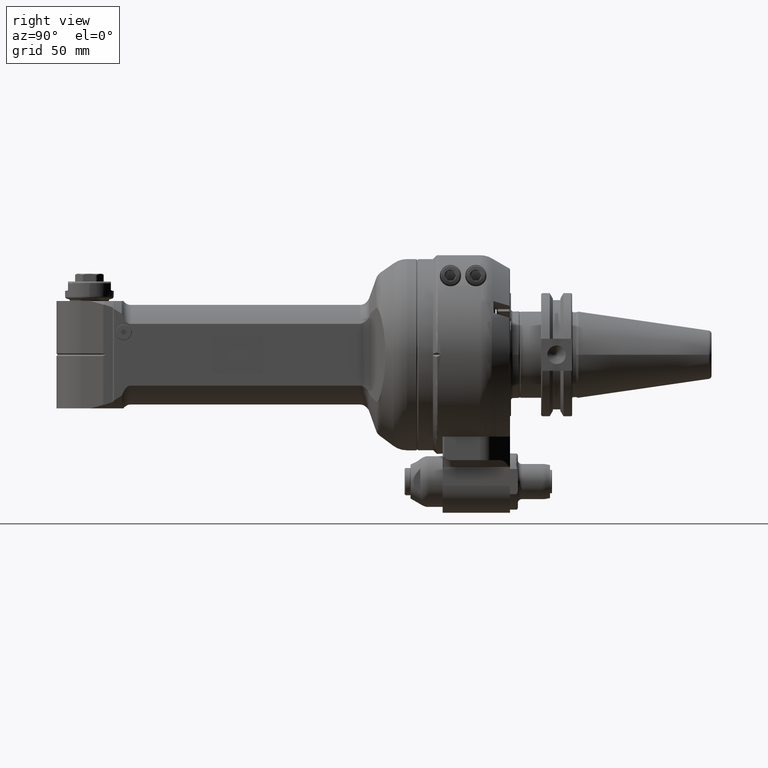
[diagram: clean part render]
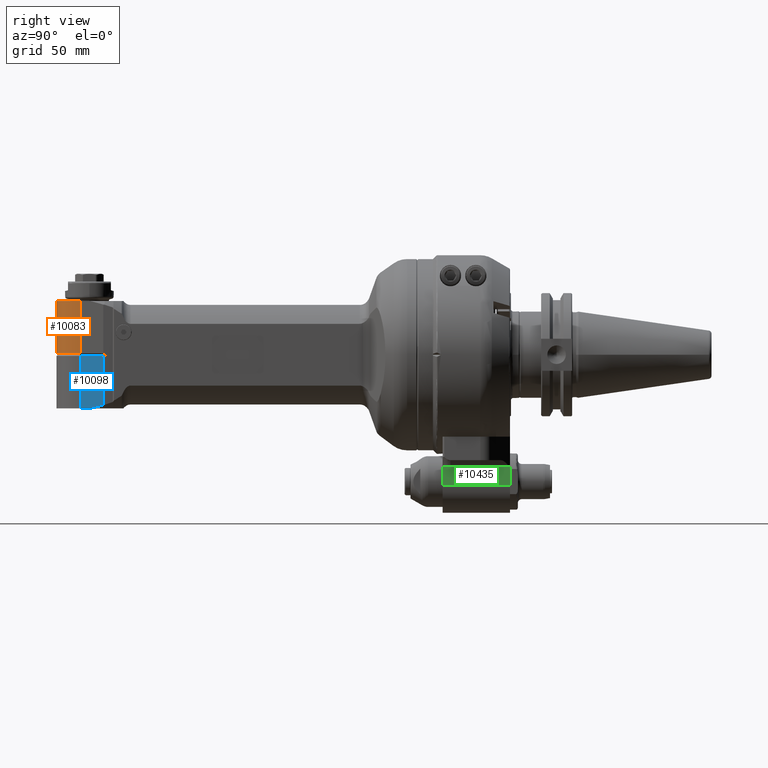
[diagram: same view with three faces highlighted in distinct colors, each labeled with its STEP entity id]
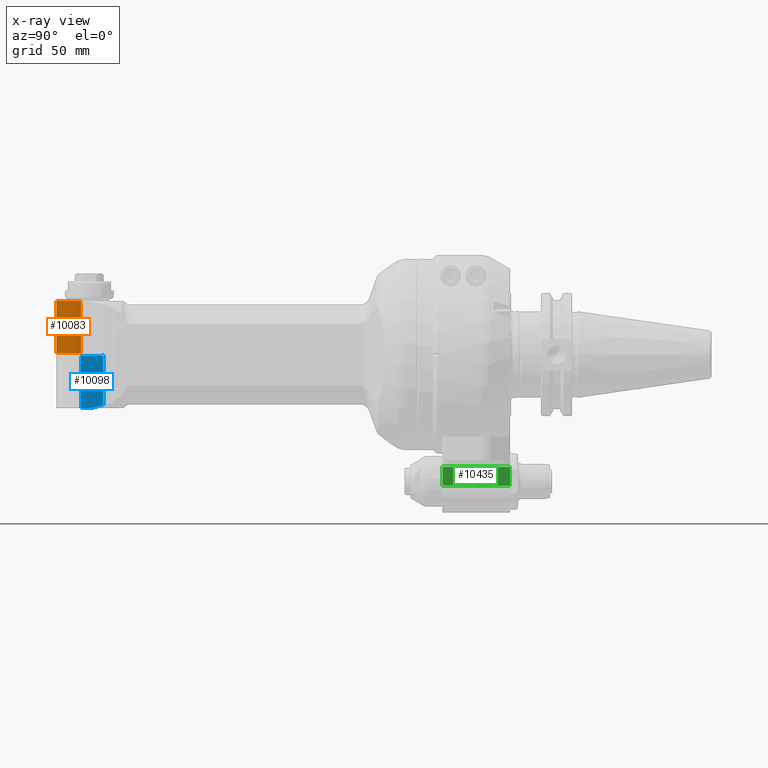
[diagram: x-ray of the same camera — body ghosted, the three highlighted faces saturated]
A machine part, right view with three faces highlighted in distinct colors.
The next image is the same camera in x-ray (body ghosted, the three faces saturated) — at least one of them is partly hidden behind the body in this view.
Their STEP definitions:

[orange] entity #10083 — the highlighted cylindrical surface (edge-blend (fillet) strip) has radius 17 mm, axis along (-0, 0, -1).
#876=FACE_OUTER_BOUND('',#1506,.T.);
#1506=EDGE_LOOP('',(#6916,#6917,#6918,#6919));
#2219=LINE('',#15835,#2895);
#2224=LINE('',#15854,#2900);
#2895=VECTOR('',#12286,26.83431457505);
#2900=VECTOR('',#12305,26.83431457505);
#3582=CIRCLE('',#10875,17.);
#3586=CIRCLE('',#10885,17.);
#4243=VERTEX_POINT('',#15807);
#4244=VERTEX_POINT('',#15809);
#4249=VERTEX_POINT('',#15833);
#4252=VERTEX_POINT('',#15848);
#5273=EDGE_CURVE('',#4243,#4244,#3582,.T.);
#5283=EDGE_CURVE('',#4243,#4249,#2219,.T.);
#5289=EDGE_CURVE('',#4252,#4249,#3586,.T.);
#5292=EDGE_CURVE('',#4252,#4244,#2224,.T.);
#6916=ORIENTED_EDGE('',*,*,#5289,.F.);
#6917=ORIENTED_EDGE('',*,*,#5292,.T.);
#6918=ORIENTED_EDGE('',*,*,#5273,.F.);
#6919=ORIENTED_EDGE('',*,*,#5283,.T.);
#9698=CYLINDRICAL_SURFACE('',#10887,17.);
#10083=ADVANCED_FACE('',(#876),#9698,.T.);
#10875=AXIS2_PLACEMENT_3D('',#15810,#12272,#12273);
#10885=AXIS2_PLACEMENT_3D('',#15849,#12298,#12299);
#10887=AXIS2_PLACEMENT_3D('',#15853,#12303,#12304);
#12272=DIRECTION('center_axis',(0.,-1.,0.));
#12273=DIRECTION('ref_axis',(0.258819045102493,0.,-0.965925826289076));
#12286=DIRECTION('',(0.,1.,0.));
#12298=DIRECTION('center_axis',(0.,1.,0.));
#12299=DIRECTION('ref_axis',(0.258819045102493,0.,0.965925826289076));
#12303=DIRECTION('center_axis',(0.,1.,0.));
#12304=DIRECTION('ref_axis',(1.,0.,1.22464679914735E-16));
#12305=DIRECTION('',(0.,-1.,0.));
#15807=CARTESIAN_POINT('',(211.3999237667,-27.5,-16.42073904691));
#15809=CARTESIAN_POINT('',(211.3999237667,-27.5,16.42073904691));
#15810=CARTESIAN_POINT('Origin',(207.,-27.5,0.));
#15833=CARTESIAN_POINT('',(211.3999237667,-0.6656854249492,-16.42073904691));
#15835=CARTESIAN_POINT('',(211.3999237667,-27.5,-16.42073904691));
#15848=CARTESIAN_POINT('',(211.3999237667,-0.6656854249492,16.42073904691));
#15849=CARTESIAN_POINT('Origin',(207.,-0.6656854249492,0.));
#15853=CARTESIAN_POINT('Origin',(207.,-66.95199937934,0.));
#15854=CARTESIAN_POINT('',(211.3999237667,-0.6656854249492,16.42073904691));

[blue] entity #10098 — the highlighted planar face has unit normal (-0.9659, 0.2588, 0).
#40=ELLIPSE('',#10861,147.665159800745,36.9484048571257);
#375=(
BOUNDED_CURVE()
B_SPLINE_CURVE(2,(#15912,#15913,#15914),.UNSPECIFIED.,.F.,.F.)
B_SPLINE_CURVE_WITH_KNOTS((3,3),(-0.608380908828798,-0.457133233484977),
 .UNSPECIFIED.)
CURVE()
GEOMETRIC_REPRESENTATION_ITEM()
RATIONAL_B_SPLINE_CURVE((1.05761844635395,1.05761844635161,1.0540573165336))
REPRESENTATION_ITEM('')
);
#574=PLANE('',#10913);
#891=FACE_OUTER_BOUND('',#1521,.T.);
#1521=EDGE_LOOP('',(#6981,#6982,#6983,#6984,#6985,#6986));
#2211=LINE('',#15705,#2887);
#2215=LINE('',#15776,#2891);
#2232=LINE('',#15886,#2908);
#2236=LINE('',#15915,#2912);
#2887=VECTOR('',#12232,10.);
#2891=VECTOR('',#12248,10.);
#2908=VECTOR('',#12341,26.83431457505);
#2912=VECTOR('',#12369,10.);
#4219=VERTEX_POINT('',#15700);
#4220=VERTEX_POINT('',#15704);
#4226=VERTEX_POINT('',#15727);
#4235=VERTEX_POINT('',#15772);
#4260=VERTEX_POINT('',#15880);
#4264=VERTEX_POINT('',#15911);
#5242=EDGE_CURVE('',#4219,#4220,#2211,.T.);
#5251=EDGE_CURVE('',#4219,#4226,#40,.T.);
#5260=EDGE_CURVE('',#4226,#4235,#2215,.T.);
#5308=EDGE_CURVE('',#4220,#4260,#2232,.T.);
#5318=EDGE_CURVE('',#4264,#4235,#375,.T.);
#5319=EDGE_CURVE('',#4264,#4260,#2236,.T.);
#6981=ORIENTED_EDGE('',*,*,#5308,.F.);
#6982=ORIENTED_EDGE('',*,*,#5242,.F.);
#6983=ORIENTED_EDGE('',*,*,#5251,.T.);
#6984=ORIENTED_EDGE('',*,*,#5260,.T.);
#6985=ORIENTED_EDGE('',*,*,#5318,.F.);
#6986=ORIENTED_EDGE('',*,*,#5319,.T.);
#10098=ADVANCED_FACE('',(#891),#574,.F.);
#10861=AXIS2_PLACEMENT_3D('',#15732,#12240,#12241);
#10913=AXIS2_PLACEMENT_3D('',#15910,#12367,#12368);
#12232=DIRECTION('',(0.965925826289076,0.,-0.258819045102493));
#12240=DIRECTION('center_axis',(0.258811809118351,2.74494483472399E-5,0.965927764746109));
#12241=DIRECTION('ref_axis',(0.965894803164682,0.00825389146189277,-0.25880321191051));
#12248=DIRECTION('',(0.,-1.,0.));
#12341=DIRECTION('',(0.,-1.,0.));
#12367=DIRECTION('center_axis',(-0.258819045102493,0.,-0.965925826289076));
#12368=DIRECTION('ref_axis',(-0.965925826289076,0.,0.258819045102493));
#12369=DIRECTION('',(0.965925826289076,8.94952701449703E-15,-0.258819045102493));
#15700=CARTESIAN_POINT('',(206.559819615343,27.5000006021057,17.7176431988342));
#15704=CARTESIAN_POINT('',(211.3999237667,27.5,16.42073904691));
#15705=CARTESIAN_POINT('',(225.182559701213,27.5,12.7276928787072));
#15727=CARTESIAN_POINT('',(199.9079654401,25.68459718532,19.5));
#15732=CARTESIAN_POINT('Origin',(305.150412604332,1.58886621168437,-8.69809899475084));
#15772=CARTESIAN_POINT('',(199.90796543257,0.584601486542986,19.5000000009915));
#15776=CARTESIAN_POINT('',(199.907965440085,-13.375,19.5));
#15880=CARTESIAN_POINT('',(211.3999237667,0.6656854249493,16.42073904691));
#15886=CARTESIAN_POINT('',(211.3999237667,27.5,16.42073904691));
#15910=CARTESIAN_POINT('Origin',(198.0419400363,-27.,20.));
#15911=CARTESIAN_POINT('',(201.257702575477,0.665686363980565,19.1383389673964));
#15912=CARTESIAN_POINT('Ctrl Pts',(201.257702589793,0.665685424967874,19.1383390207414));
#15913=CARTESIAN_POINT('Ctrl Pts',(200.585106375664,0.665685424914957,19.3185606331496));
#15914=CARTESIAN_POINT('Ctrl Pts',(199.907965432519,0.584601489258191,19.5000000020273));
#15915=CARTESIAN_POINT('',(204.720931901515,0.665685424956044,18.2103695234618));

[green] entity #10435 — the highlighted planar face has unit normal (-1, 0, 0).
#391=(
BOUNDED_CURVE()
B_SPLINE_CURVE(2,(#19944,#19945,#19946),.UNSPECIFIED.,.F.,.F.)
B_SPLINE_CURVE_WITH_KNOTS((3,3),(-2.58287776726093,-2.57434975898472),
 .UNSPECIFIED.)
CURVE()
GEOMETRIC_REPRESENTATION_ITEM()
RATIONAL_B_SPLINE_CURVE((1.44254286468392,1.44297118444748,1.44339185140923))
REPRESENTATION_ITEM('')
);
#504=B_SPLINE_CURVE_WITH_KNOTS('',3,(#19947,#19948,#19949,#19950,#19951,
#19952),.UNSPECIFIED.,.F.,.F.,(4,1,1,4),(0.,0.3333333333333,0.6666666666667,
1.),.UNSPECIFIED.);
#723=PLANE('',#11612);
#1228=FACE_OUTER_BOUND('',#1916,.T.);
#1916=EDGE_LOOP('',(#8622,#8623,#8624,#8625,#8626,#8627,#8628));
#2387=LINE('',#16835,#3063);
#2432=LINE('',#17219,#3108);
#2435=LINE('',#17225,#3111);
#2586=LINE('',#19787,#3262);
#2602=LINE('',#19942,#3278);
#3063=VECTOR('',#13180,9.5);
#3108=VECTOR('',#13311,0.7629679276389);
#3111=VECTOR('',#13314,8.70839142844);
#3262=VECTOR('',#14081,34.5);
#3278=VECTOR('',#14133,34.5);
#4477=VERTEX_POINT('',#16832);
#4478=VERTEX_POINT('',#16834);
#4542=VERTEX_POINT('',#17216);
#4543=VERTEX_POINT('',#17218);
#4545=VERTEX_POINT('',#17222);
#4546=VERTEX_POINT('',#17224);
#4791=VERTEX_POINT('',#19943);
#5655=EDGE_CURVE('',#4478,#4477,#2387,.T.);
#5736=EDGE_CURVE('',#4543,#4542,#2432,.T.);
#5739=EDGE_CURVE('',#4546,#4545,#2435,.T.);
#6108=EDGE_CURVE('',#4542,#4478,#2586,.T.);
#6131=EDGE_CURVE('',#4546,#4477,#2602,.T.);
#6132=EDGE_CURVE('',#4791,#4545,#391,.T.);
#6133=EDGE_CURVE('',#4543,#4791,#504,.T.);
#8622=ORIENTED_EDGE('',*,*,#6108,.T.);
#8623=ORIENTED_EDGE('',*,*,#5655,.T.);
#8624=ORIENTED_EDGE('',*,*,#6131,.F.);
#8625=ORIENTED_EDGE('',*,*,#5739,.T.);
#8626=ORIENTED_EDGE('',*,*,#6132,.F.);
#8627=ORIENTED_EDGE('',*,*,#6133,.F.);
#8628=ORIENTED_EDGE('',*,*,#5736,.T.);
#10435=ADVANCED_FACE('',(#1228),#723,.F.);
#11612=AXIS2_PLACEMENT_3D('',#19941,#14131,#14132);
#13180=DIRECTION('',(0.,0.,-1.));
#13311=DIRECTION('',(-3.073496587321E-9,-8.940363043052E-13,1.));
#13314=DIRECTION('',(0.,0.,1.));
#14081=DIRECTION('',(0.,-1.,0.));
#14131=DIRECTION('center_axis',(-1.,0.,0.));
#14132=DIRECTION('ref_axis',(0.,-1.,0.));
#14133=DIRECTION('',(0.,-1.,0.));
#16832=CARTESIAN_POINT('',(15.,5.,-67.));
#16834=CARTESIAN_POINT('',(15.,5.,-57.5));
#16835=CARTESIAN_POINT('',(15.,5.,-57.5));
#17216=CARTESIAN_POINT('',(15.,39.5,-57.5));
#17218=CARTESIAN_POINT('',(15.0000000030541,39.5000000001996,-58.2629679283757));
#17219=CARTESIAN_POINT('',(15.00000000234,39.5,-58.26296792764));
#17222=CARTESIAN_POINT('',(15.,39.5,-58.29160857156));
#17224=CARTESIAN_POINT('',(15.,39.5,-67.));
#17225=CARTESIAN_POINT('',(15.,39.5,-67.));
#19787=CARTESIAN_POINT('',(15.,39.5,-57.5));
#19941=CARTESIAN_POINT('Origin',(15.,52.3,-37.7999976));
#19942=CARTESIAN_POINT('',(15.,39.5,-67.));
#19943=CARTESIAN_POINT('',(14.9999999975262,39.4392080906412,-58.2892304850291));
#19944=CARTESIAN_POINT('Ctrl Pts',(15.,39.4392080907947,-58.2892304853374));
#19945=CARTESIAN_POINT('Ctrl Pts',(15.,39.4696216465868,-58.2904305962974));
#19946=CARTESIAN_POINT('Ctrl Pts',(15.,39.5000000000027,-58.2916085715602));
#19947=CARTESIAN_POINT('Ctrl Pts',(15.00000000234,39.5,-58.26296792764));
#19948=CARTESIAN_POINT('Ctrl Pts',(15.00000000234,39.49325666759,-58.2658556512));
#19949=CARTESIAN_POINT('Ctrl Pts',(14.99999999859,39.47976244941,-58.27165130213));
#19950=CARTESIAN_POINT('Ctrl Pts',(15.00000000141,39.45949859437,-58.28040536456));
#19951=CARTESIAN_POINT('Ctrl Pts',(14.99999999765,39.44597410964,-58.28628201667));
#19952=CARTESIAN_POINT('Ctrl Pts',(14.99999999765,39.43920809102,-58.28923048521));